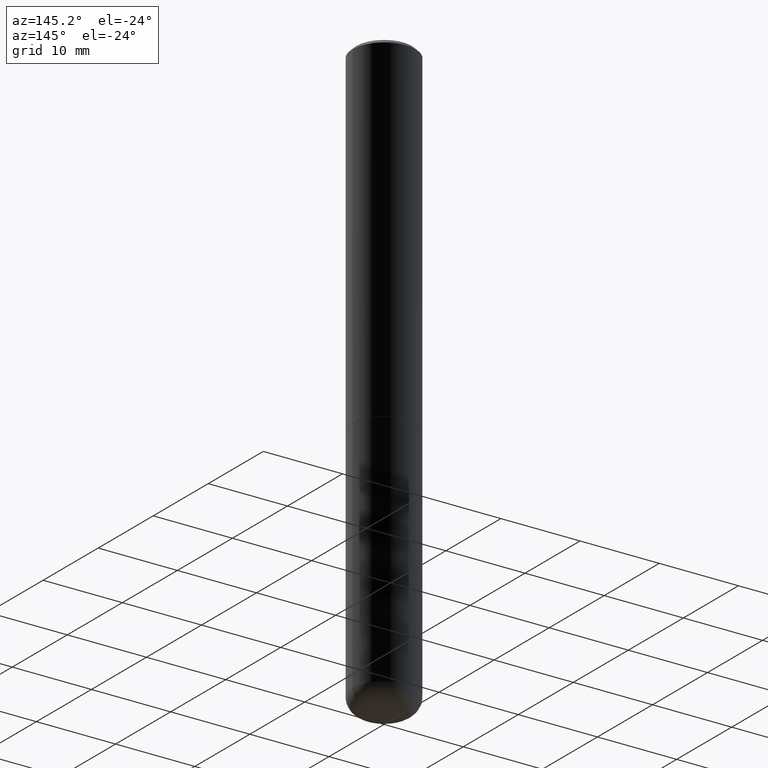
[diagram: clean part render]
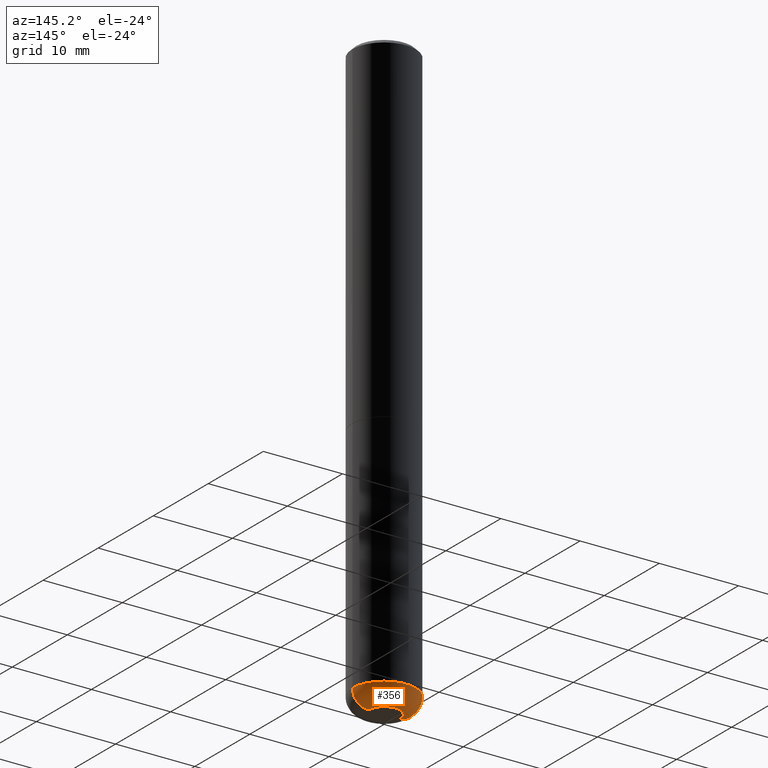
[diagram: same view with one face highlighted and labeled with its STEP entity id]
A machine part, auxiliary view. The second image highlights one B-rep face of the part: STEP entity #356.
In plain terms, the highlighted toroidal blend (fillet) surface has major radius 2.0015 mm and minor (blend) radius 1.999 mm.
Its self-contained STEP definition (entity closure, byte-faithful):
#12 = EDGE_CURVE ( 'NONE', #384, #380, #241, .T. ) ;
#25 = CARTESIAN_POINT ( 'NONE',  ( 7.028521895856700897E-29, -1.003486651596908519E-14, -2.874099999999999877 ) ) ;
#28 = AXIS2_PLACEMENT_3D ( 'NONE', #238, #114, #121 ) ;
#39 = CARTESIAN_POINT ( 'NONE',  ( -0.07880000000000000893, -9.332750064352005228E-15, -2.952799999999999869 ) ) ;
#63 = DIRECTION ( 'NONE',  ( -2.445468806185136597E-29, 3.491481338843145583E-15, 1.000000000000000000 ) ) ;
#84 = AXIS2_PLACEMENT_3D ( 'NONE', #361, #331, #259 ) ;
#96 = CARTESIAN_POINT ( 'NONE',  ( 0.07880000000000000893, -1.085990355633771696E-14, -2.952799999999999869 ) ) ;
#107 = VERTEX_POINT ( 'NONE', #96 ) ;
#110 = TOROIDAL_SURFACE ( 'NONE', #161, 0.07879999999999999505, 0.07869999999999995055 ) ;
#114 = DIRECTION ( 'NONE',  ( -2.445468806185136597E-29, 3.491481338843145583E-15, 1.000000000000000000 ) ) ;
#115 = FACE_OUTER_BOUND ( 'NONE', #222, .T. ) ;
#121 = DIRECTION ( 'NONE',  ( 1.000000000000000000, -6.982962677686277755E-15, 0.000000000000000000 ) ) ;
#132 = VERTEX_POINT ( 'NONE', #39 ) ;
#140 = EDGE_CURVE ( 'NONE', #107, #384, #172, .T. ) ;
#158 = ORIENTED_EDGE ( 'NONE', *, *, #271, .T. ) ;
#161 = AXIS2_PLACEMENT_3D ( 'NONE', #25, #63, #198 ) ;
#172 = CIRCLE ( 'NONE', #84, 0.07869999999999996443 ) ;
#187 = DIRECTION ( 'NONE',  ( -2.445468806185136597E-29, 3.491481338843145583E-15, 1.000000000000000000 ) ) ;
#198 = DIRECTION ( 'NONE',  ( 1.000000000000000000, -6.982962677686263555E-15, 4.883557194083111780E-29 ) ) ;
#214 = CIRCLE ( 'NONE', #28, 0.07880000000000000893 ) ;
#220 = ORIENTED_EDGE ( 'NONE', *, *, #372, .T. ) ;
#222 = EDGE_LOOP ( 'NONE', ( #220, #158, #260, #249 ) ) ;
#238 = CARTESIAN_POINT ( 'NONE',  ( 7.220980290903470182E-29, -1.030964609733603853E-14, -2.952799999999999869 ) ) ;
#241 = CIRCLE ( 'NONE', #338, 0.1575000000000000011 ) ;
#245 = DIRECTION ( 'NONE',  ( 7.105427357601001859E-15, 1.000000000000000000, -3.491481338843145583E-15 ) ) ;
#249 = ORIENTED_EDGE ( 'NONE', *, *, #140, .F. ) ;
#259 = DIRECTION ( 'NONE',  ( 1.000000000000000000, -6.982962677686273021E-15, 0.000000000000000000 ) ) ;
#260 = ORIENTED_EDGE ( 'NONE', *, *, #12, .F. ) ;
#271 = EDGE_CURVE ( 'NONE', #132, #380, #412, .T. ) ;
#277 = CARTESIAN_POINT ( 'NONE',  ( -0.07879999999999999505, -9.474958840190126376E-15, -2.874099999999999877 ) ) ;
#288 = CARTESIAN_POINT ( 'NONE',  ( 7.028521895856700897E-29, -1.003486651596908519E-14, -2.874099999999999877 ) ) ;
#303 = CARTESIAN_POINT ( 'NONE',  ( -0.1574999999999999456, -8.915761707146927585E-15, -2.874099999999999877 ) ) ;
#328 = AXIS2_PLACEMENT_3D ( 'NONE', #277, #245, #344 ) ;
#331 = DIRECTION ( 'NONE',  ( -6.982962677686266711E-15, -1.000000000000000000, 3.491481338843145583E-15 ) ) ;
#338 = AXIS2_PLACEMENT_3D ( 'NONE', #288, #187, #383 ) ;
#344 = DIRECTION ( 'NONE',  ( -1.000000000000000000, 7.105427357600995548E-15, 0.000000000000000000 ) ) ;
#356 = ADVANCED_FACE ( 'NONE', ( #115 ), #110, .T. ) ;
#361 = CARTESIAN_POINT ( 'NONE',  ( 0.07879999999999999505, -1.058512397497076362E-14, -2.874099999999999877 ) ) ;
#370 = CARTESIAN_POINT ( 'NONE',  ( 0.1574999999999999456, -1.113468313770467030E-14, -2.874099999999999877 ) ) ;
#372 = EDGE_CURVE ( 'NONE', #107, #132, #214, .T. ) ;
#380 = VERTEX_POINT ( 'NONE', #303 ) ;
#383 = DIRECTION ( 'NONE',  ( 1.000000000000000000, -6.982962677686261977E-15, 0.000000000000000000 ) ) ;
#384 = VERTEX_POINT ( 'NONE', #370 ) ;
#412 = CIRCLE ( 'NONE', #328, 0.07869999999999996443 ) ;